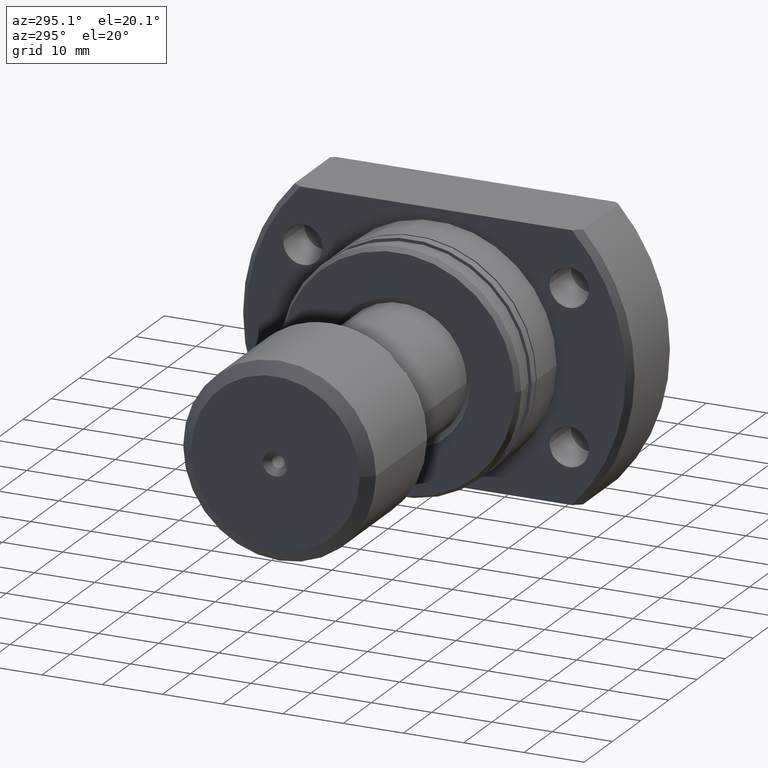
[diagram: clean part render]
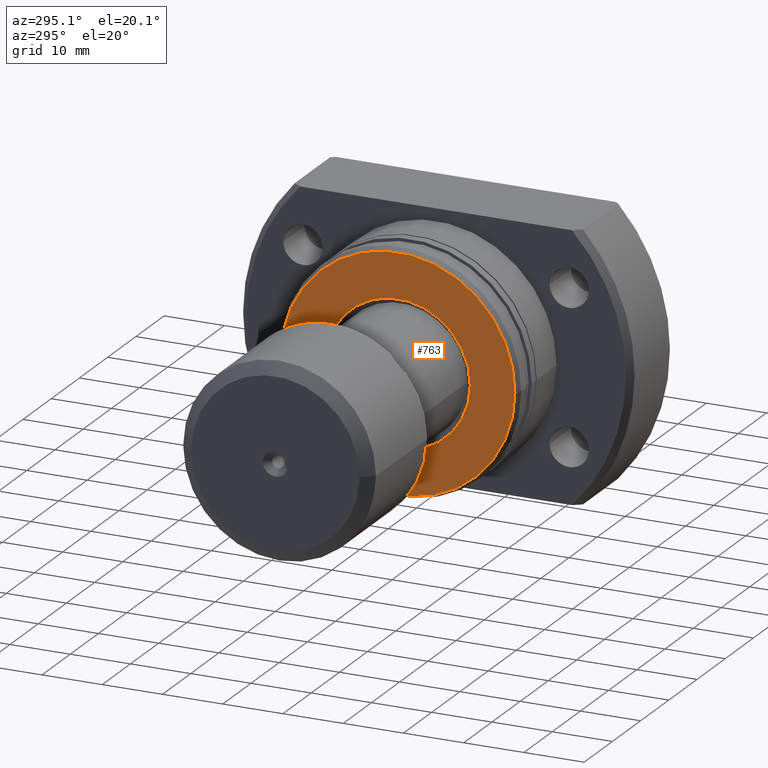
[diagram: same view with one face highlighted and labeled with its STEP entity id]
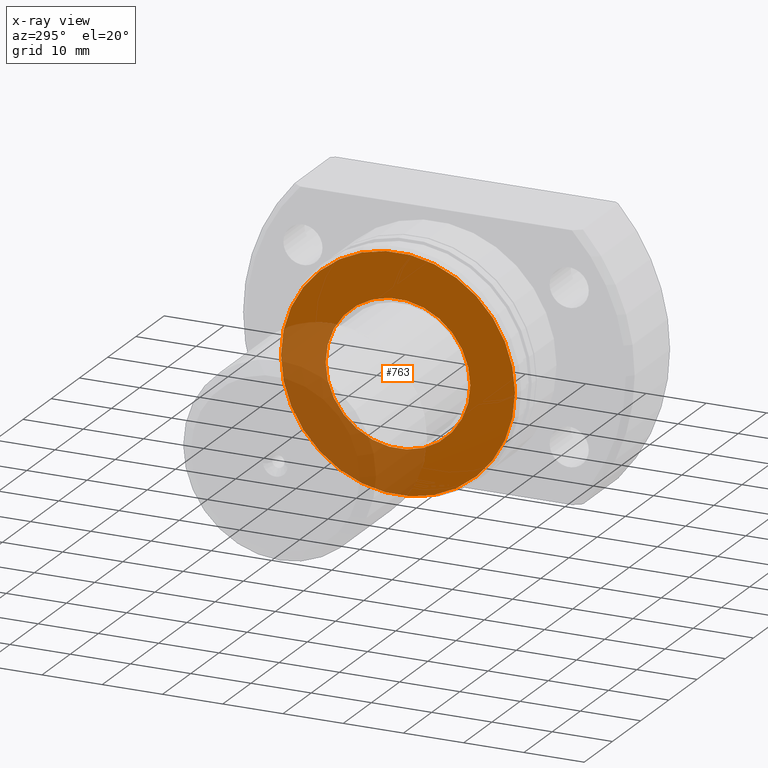
[diagram: x-ray of the same camera — body ghosted, the highlighted face saturated]
A machine part, auxiliary view. The second image highlights one B-rep face of the part: STEP entity #763.
The next image is the same camera in x-ray: the body ghosted, the highlighted face saturated — about 35% of this face is hidden behind the body in this view.
In plain terms, the highlighted planar face has unit normal (1, 0, 0).
Its self-contained STEP definition (entity closure, byte-faithful):
#5 = CARTESIAN_POINT ( 'NONE',  ( 8.427126612902389615E-16, 12.00000000000039613, 1.469576158976872462E-15 ) ) ;
#71 = ORIENTED_EDGE ( 'NONE', *, *, #1248, .T. ) ;
#101 = CIRCLE ( 'NONE', #824, 12.00000000000039613 ) ;
#165 = CARTESIAN_POINT ( 'NONE',  ( 3.469446951953614189E-15, 4.814824860968089633E-32, 0.000000000000000000 ) ) ;
#178 = DIRECTION ( 'NONE',  ( 1.000000000000000000, 1.335978326342566810E-17, -0.000000000000000000 ) ) ;
#410 = DIRECTION ( 'NONE',  ( -1.335978326342567272E-17, 1.000000000000000000, 0.000000000000000000 ) ) ;
#466 = AXIS2_PLACEMENT_3D ( 'NONE', #165, #2174, #2882 ) ;
#489 = VERTEX_POINT ( 'NONE', #1116 ) ;
#757 = EDGE_LOOP ( 'NONE', ( #1836, #1058 ) ) ;
#763 = ADVANCED_FACE ( 'NONE', ( #785, #818 ), #2979, .F. ) ;
#785 = FACE_BOUND ( 'NONE', #2504, .T. ) ;
#811 = VERTEX_POINT ( 'NONE', #5 ) ;
#818 = FACE_OUTER_BOUND ( 'NONE', #757, .T. ) ;
#824 = AXIS2_PLACEMENT_3D ( 'NONE', #2628, #178, #2871 ) ;
#828 = CIRCLE ( 'NONE', #1395, 19.42264973081037027 ) ;
#891 = DIRECTION ( 'NONE',  ( -1.335978326342566194E-17, 1.000000000000000000, 0.000000000000000000 ) ) ;
#930 = CIRCLE ( 'NONE', #1661, 12.00000000000039613 ) ;
#1058 = ORIENTED_EDGE ( 'NONE', *, *, #1676, .F. ) ;
#1059 = CARTESIAN_POINT ( 'NONE',  ( 3.728929342758673161E-15, -19.42264973081037027, 2.413941090337209377E-15 ) ) ;
#1116 = CARTESIAN_POINT ( 'NONE',  ( 3.209964561148554822E-15, 19.42264973081037027, 0.000000000000000000 ) ) ;
#1166 = DIRECTION ( 'NONE',  ( 1.000000000000000000, 1.335978326342566810E-17, -0.000000000000000000 ) ) ;
#1169 = EDGE_CURVE ( 'NONE', #489, #3204, #1342, .T. ) ;
#1248 = EDGE_CURVE ( 'NONE', #811, #2391, #101, .T. ) ;
#1309 = CARTESIAN_POINT ( 'NONE',  ( 1.059553095787363711E-15, 1.415539971581087523E-32, 0.000000000000000000 ) ) ;
#1342 = CIRCLE ( 'NONE', #466, 19.42264973081037027 ) ;
#1395 = AXIS2_PLACEMENT_3D ( 'NONE', #2093, #1166, #891 ) ;
#1397 = CARTESIAN_POINT ( 'NONE',  ( 1.059553095787339848E-15, -2.954820703888036224E-29, 0.000000000000000000 ) ) ;
#1661 = AXIS2_PLACEMENT_3D ( 'NONE', #1397, #3175, #410 ) ;
#1676 = EDGE_CURVE ( 'NONE', #3204, #489, #828, .T. ) ;
#1816 = AXIS2_PLACEMENT_3D ( 'NONE', #1309, #2803, #3031 ) ;
#1836 = ORIENTED_EDGE ( 'NONE', *, *, #1169, .F. ) ;
#2093 = CARTESIAN_POINT ( 'NONE',  ( 3.469446951953614189E-15, 4.814824860968089633E-32, 0.000000000000000000 ) ) ;
#2174 = DIRECTION ( 'NONE',  ( 1.000000000000000000, 1.335978326342566810E-17, -0.000000000000000000 ) ) ;
#2391 = VERTEX_POINT ( 'NONE', #2798 ) ;
#2447 = ORIENTED_EDGE ( 'NONE', *, *, #2538, .T. ) ;
#2504 = EDGE_LOOP ( 'NONE', ( #2447, #71 ) ) ;
#2538 = EDGE_CURVE ( 'NONE', #2391, #811, #930, .T. ) ;
#2628 = CARTESIAN_POINT ( 'NONE',  ( 1.059553095787339848E-15, -2.954820703888036224E-29, 0.000000000000000000 ) ) ;
#2798 = CARTESIAN_POINT ( 'NONE',  ( 1.276393530284440735E-15, -11.99999999999970335, 0.000000000000000000 ) ) ;
#2803 = DIRECTION ( 'NONE',  ( 1.000000000000000000, 1.335978326342566810E-17, -0.000000000000000000 ) ) ;
#2871 = DIRECTION ( 'NONE',  ( -1.335978326342567272E-17, 1.000000000000000000, 0.000000000000000000 ) ) ;
#2882 = DIRECTION ( 'NONE',  ( -1.335978326342566194E-17, 1.000000000000000000, 0.000000000000000000 ) ) ;
#2979 = PLANE ( 'NONE',  #1816 ) ;
#3031 = DIRECTION ( 'NONE',  ( -1.335978326342566810E-17, 1.000000000000000000, 0.000000000000000000 ) ) ;
#3175 = DIRECTION ( 'NONE',  ( 1.000000000000000000, 1.335978326342566810E-17, -0.000000000000000000 ) ) ;
#3204 = VERTEX_POINT ( 'NONE', #1059 ) ;